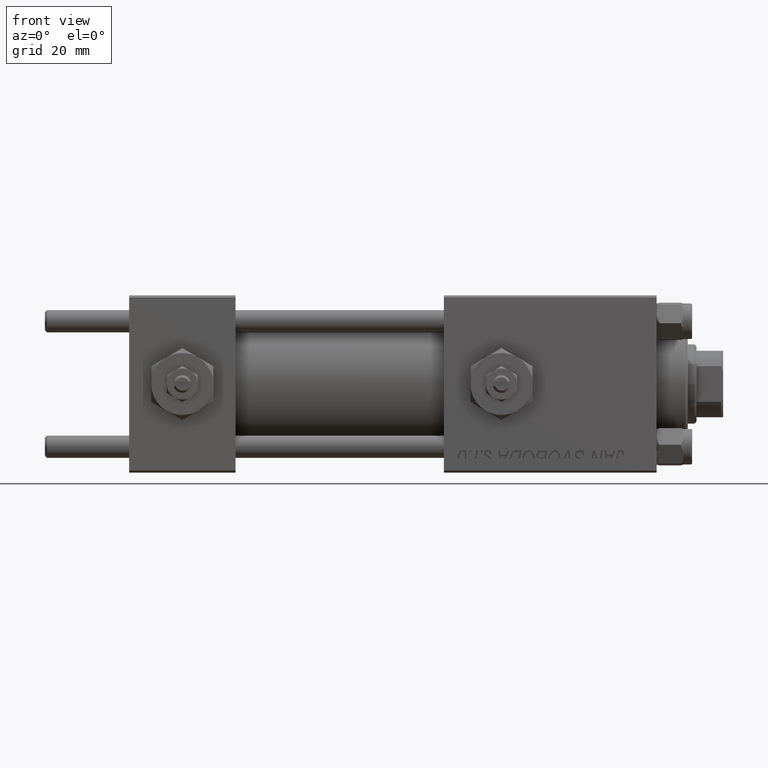
[diagram: clean part render]
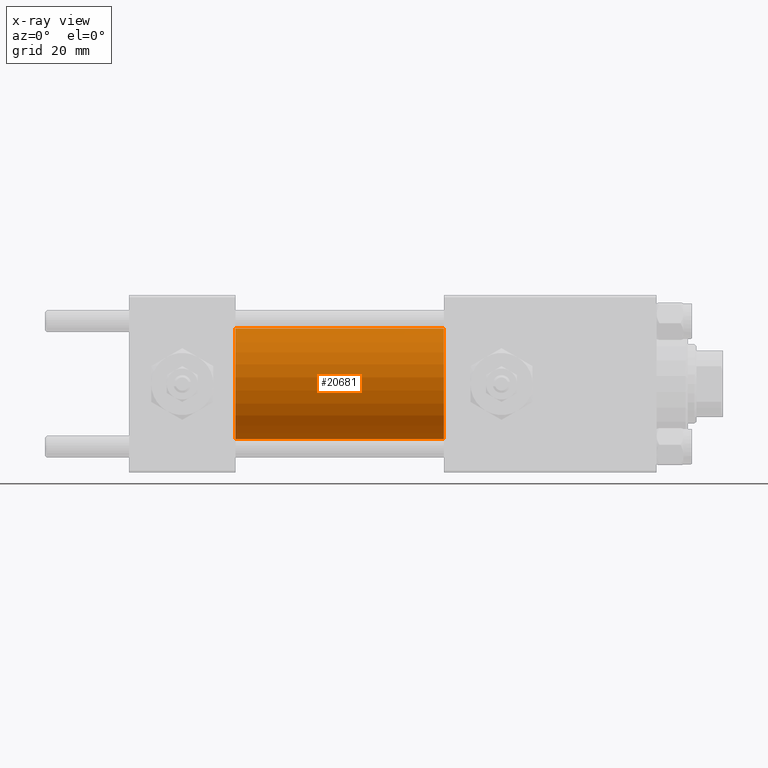
[diagram: x-ray — body ghosted, one internal face saturated and labeled with its STEP entity id]
A machine part, front view, then the same camera in x-ray: the body is ghosted and one INTERNAL B-rep face — a face not visible from any outside direction — is saturated and labeled: STEP entity #20681.
In plain terms, the highlighted cylindrical surface (partial cylindrical patch) has radius 12.5 mm, axis along (-1, -0, -0).
Its self-contained STEP definition (entity closure, byte-faithful):
#505 = VERTEX_POINT ( 'NONE', #46229 ) ;
#2860 = DIRECTION ( 'NONE',  ( 0.000000000000000000, 0.000000000000000000, -1.000000000000000000 ) ) ;
#4763 = CARTESIAN_POINT ( 'NONE',  ( 71.00000000000001421, 0.000000000000000000, 12.49999999999999645 ) ) ;
#5154 = CARTESIAN_POINT ( 'NONE',  ( 24.00000000000000000, 1.530808498934191127E-15, -12.49999999999999645 ) ) ;
#5864 = AXIS2_PLACEMENT_3D ( 'NONE', #10731, #26744, #2860 ) ;
#6515 = EDGE_CURVE ( 'NONE', #15908, #46305, #49774, .T. ) ;
#7862 = DIRECTION ( 'NONE',  ( 1.000000000000000000, 0.000000000000000000, 0.000000000000000000 ) ) ;
#9369 = CARTESIAN_POINT ( 'NONE',  ( 71.00000000000001421, 1.530808498934191127E-15, -12.49999999999999645 ) ) ;
#10731 = CARTESIAN_POINT ( 'NONE',  ( 24.00000000000000000, 0.000000000000000000, 0.000000000000000000 ) ) ;
#15908 = VERTEX_POINT ( 'NONE', #50352 ) ;
#16161 = ORIENTED_EDGE ( 'NONE', *, *, #16417, .T. ) ;
#16417 = EDGE_CURVE ( 'NONE', #505, #15908, #44447, .T. ) ;
#16787 = CARTESIAN_POINT ( 'NONE',  ( 71.00000000000001421, 0.000000000000000000, 0.000000000000000000 ) ) ;
#16820 = LINE ( 'NONE', #4763, #27786 ) ;
#17296 = DIRECTION ( 'NONE',  ( 0.000000000000000000, 0.000000000000000000, 1.000000000000000000 ) ) ;
#18187 = EDGE_CURVE ( 'NONE', #505, #47698, #16820, .T. ) ;
#20681 = ADVANCED_FACE ( 'NONE', ( #48828 ), #24688, .F. ) ;
#21428 = DIRECTION ( 'NONE',  ( -1.000000000000000000, -0.000000000000000000, -0.000000000000000000 ) ) ;
#23858 = DIRECTION ( 'NONE',  ( 0.000000000000000000, 0.000000000000000000, -1.000000000000000000 ) ) ;
#24688 = CYLINDRICAL_SURFACE ( 'NONE', #42787, 12.49999999999999645 ) ;
#25117 = CIRCLE ( 'NONE', #5864, 12.49999999999999645 ) ;
#26744 = DIRECTION ( 'NONE',  ( 1.000000000000000000, 0.000000000000000000, 0.000000000000000000 ) ) ;
#27786 = VECTOR ( 'NONE', #40746, 1000.000000000000000 ) ;
#29421 = EDGE_LOOP ( 'NONE', ( #16161, #29605, #30973, #36962 ) ) ;
#29605 = ORIENTED_EDGE ( 'NONE', *, *, #6515, .T. ) ;
#30973 = ORIENTED_EDGE ( 'NONE', *, *, #36982, .F. ) ;
#36962 = ORIENTED_EDGE ( 'NONE', *, *, #18187, .F. ) ;
#36982 = EDGE_CURVE ( 'NONE', #47698, #46305, #25117, .T. ) ;
#40716 = DIRECTION ( 'NONE',  ( -1.000000000000000000, -0.000000000000000000, -0.000000000000000000 ) ) ;
#40746 = DIRECTION ( 'NONE',  ( -1.000000000000000000, -0.000000000000000000, -0.000000000000000000 ) ) ;
#42787 = AXIS2_PLACEMENT_3D ( 'NONE', #16787, #40716, #17296 ) ;
#43830 = CARTESIAN_POINT ( 'NONE',  ( 71.00000000000001421, 0.000000000000000000, 0.000000000000000000 ) ) ;
#44447 = CIRCLE ( 'NONE', #51144, 12.49999999999999645 ) ;
#46229 = CARTESIAN_POINT ( 'NONE',  ( 71.00000000000001421, 0.000000000000000000, 12.49999999999999645 ) ) ;
#46305 = VERTEX_POINT ( 'NONE', #5154 ) ;
#47698 = VERTEX_POINT ( 'NONE', #48580 ) ;
#48580 = CARTESIAN_POINT ( 'NONE',  ( 24.00000000000000000, 0.000000000000000000, 12.49999999999999645 ) ) ;
#48828 = FACE_OUTER_BOUND ( 'NONE', #29421, .T. ) ;
#49237 = VECTOR ( 'NONE', #21428, 1000.000000000000000 ) ;
#49774 = LINE ( 'NONE', #9369, #49237 ) ;
#50352 = CARTESIAN_POINT ( 'NONE',  ( 71.00000000000001421, 1.530808498934191127E-15, -12.49999999999999645 ) ) ;
#51144 = AXIS2_PLACEMENT_3D ( 'NONE', #43830, #7862, #23858 ) ;